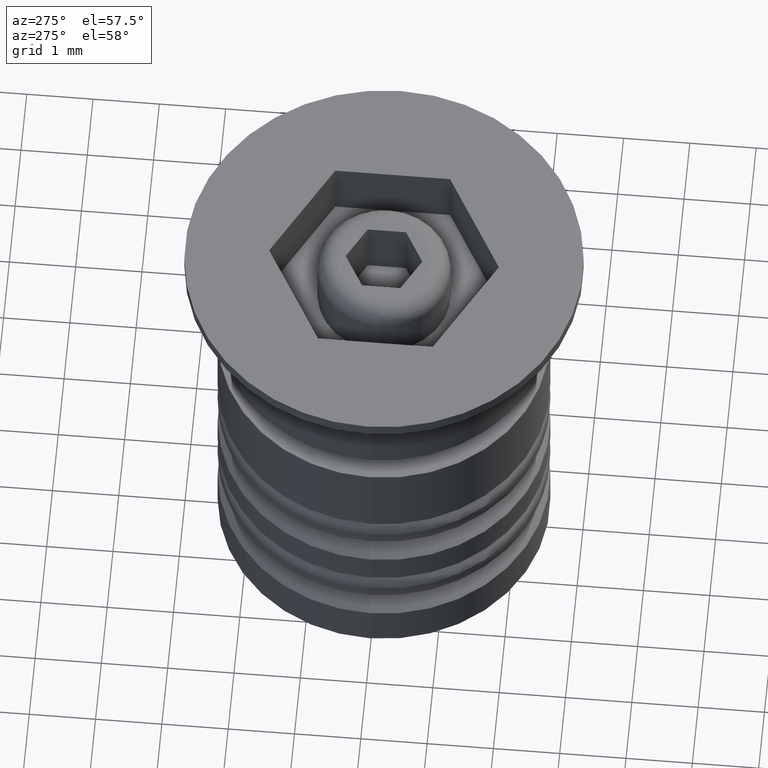
[diagram: clean part render]
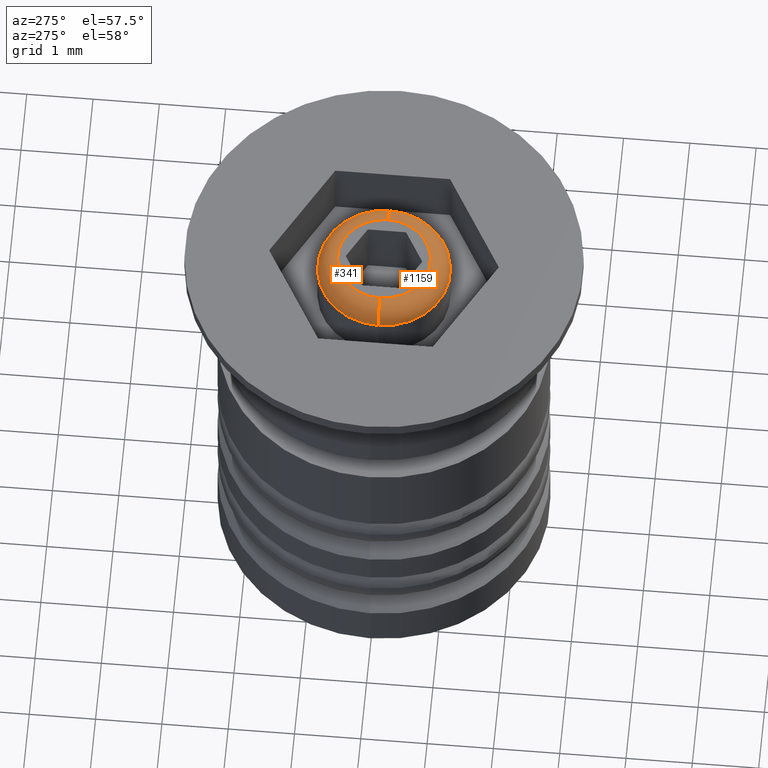
[diagram: same view with one multi-face feature highlighted, each face labeled with its STEP entity id]
A machine part, auxiliary view. The highlighted faces form ONE feature: a constant-radius fillet chain: 2 tangent blend faces with common blend radius 0.3 mm. The faces share edges in the B-rep.
Their STEP definitions:
[1] entity #341 (Torus):
#81 = CARTESIAN_POINT ( 'NONE',  ( -1.000000000000000666, 0.000000000000000000, -0.3000000000000003775 ) ) ;
#125 = EDGE_LOOP ( 'NONE', ( #1100, #1586, #299, #1050 ) ) ;
#171 = AXIS2_PLACEMENT_3D ( 'NONE', #743, #1140, #1020 ) ;
#220 = VERTEX_POINT ( 'NONE', #646 ) ;
#230 = EDGE_CURVE ( 'NONE', #1154, #220, #1243, .T. ) ;
#299 = ORIENTED_EDGE ( 'NONE', *, *, #230, .F. ) ;
#341 = ADVANCED_FACE ( 'NONE', ( #1517 ), #689, .T. ) ;
#406 = DIRECTION ( 'NONE',  ( -1.000000000000000000, 1.224646799147353207E-16, 0.000000000000000000 ) ) ;
#421 = AXIS2_PLACEMENT_3D ( 'NONE', #1198, #1485, #514 ) ;
#446 = CARTESIAN_POINT ( 'NONE',  ( 0.7000000000000007327, 0.000000000000000000, 0.000000000000000000 ) ) ;
#500 = DIRECTION ( 'NONE',  ( 0.000000000000000000, 0.000000000000000000, -1.000000000000000000 ) ) ;
#514 = DIRECTION ( 'NONE',  ( 1.000000000000000000, 0.000000000000000000, 0.000000000000000000 ) ) ;
#532 = AXIS2_PLACEMENT_3D ( 'NONE', #963, #1558, #1258 ) ;
#563 = EDGE_CURVE ( 'NONE', #878, #1141, #986, .T. ) ;
#646 = CARTESIAN_POINT ( 'NONE',  ( -0.7000000000000007327, 1.040949779275251126E-16, 0.000000000000000000 ) ) ;
#689 = TOROIDAL_SURFACE ( 'NONE', #532, 0.7000000000000007327, 0.2999999999999999889 ) ;
#743 = CARTESIAN_POINT ( 'NONE',  ( 0.7000000000000007327, 0.000000000000000000, -0.2999999999999999334 ) ) ;
#797 = DIRECTION ( 'NONE',  ( 1.000000000000000000, 0.000000000000000000, 0.000000000000000000 ) ) ;
#802 = AXIS2_PLACEMENT_3D ( 'NONE', #1553, #1126, #406 ) ;
#878 = VERTEX_POINT ( 'NONE', #81 ) ;
#963 = CARTESIAN_POINT ( 'NONE',  ( 0.000000000000000000, 0.000000000000000000, -0.2999999999999999334 ) ) ;
#986 = CIRCLE ( 'NONE', #1629, 1.000000000000000666 ) ;
#1020 = DIRECTION ( 'NONE',  ( 0.000000000000000000, 0.000000000000000000, -1.000000000000000000 ) ) ;
#1039 = CARTESIAN_POINT ( 'NONE',  ( 1.000000000000000666, 1.224646799147353947E-16, -0.3000000000000003775 ) ) ;
#1050 = ORIENTED_EDGE ( 'NONE', *, *, #1506, .F. ) ;
#1100 = ORIENTED_EDGE ( 'NONE', *, *, #563, .F. ) ;
#1126 = DIRECTION ( 'NONE',  ( 1.224646799147353207E-16, 1.000000000000000000, 0.000000000000000000 ) ) ;
#1140 = DIRECTION ( 'NONE',  ( 0.000000000000000000, -1.000000000000000000, 0.000000000000000000 ) ) ;
#1141 = VERTEX_POINT ( 'NONE', #1039 ) ;
#1142 = CIRCLE ( 'NONE', #171, 0.2999999999999999334 ) ;
#1154 = VERTEX_POINT ( 'NONE', #446 ) ;
#1198 = CARTESIAN_POINT ( 'NONE',  ( 0.000000000000000000, 0.000000000000000000, 0.000000000000000000 ) ) ;
#1243 = CIRCLE ( 'NONE', #421, 0.7000000000000007327 ) ;
#1248 = EDGE_CURVE ( 'NONE', #878, #220, #1572, .T. ) ;
#1258 = DIRECTION ( 'NONE',  ( 1.000000000000000000, 0.000000000000000000, 0.000000000000000000 ) ) ;
#1485 = DIRECTION ( 'NONE',  ( -0.000000000000000000, -0.000000000000000000, 1.000000000000000000 ) ) ;
#1506 = EDGE_CURVE ( 'NONE', #1141, #1154, #1142, .T. ) ;
#1517 = FACE_OUTER_BOUND ( 'NONE', #125, .T. ) ;
#1553 = CARTESIAN_POINT ( 'NONE',  ( -0.7000000000000007327, 8.572527594031481818E-17, -0.2999999999999999334 ) ) ;
#1558 = DIRECTION ( 'NONE',  ( -0.000000000000000000, -0.000000000000000000, 1.000000000000000000 ) ) ;
#1572 = CIRCLE ( 'NONE', #802, 0.2999999999999999334 ) ;
#1586 = ORIENTED_EDGE ( 'NONE', *, *, #1248, .T. ) ;
#1627 = CARTESIAN_POINT ( 'NONE',  ( 0.000000000000000000, 0.000000000000000000, -0.3000000000000003775 ) ) ;
#1629 = AXIS2_PLACEMENT_3D ( 'NONE', #1627, #500, #797 ) ;
[2] entity #1159 (Torus):
#81 = CARTESIAN_POINT ( 'NONE',  ( -1.000000000000000666, 0.000000000000000000, -0.3000000000000003775 ) ) ;
#161 = CIRCLE ( 'NONE', #694, 1.000000000000000666 ) ;
#171 = AXIS2_PLACEMENT_3D ( 'NONE', #743, #1140, #1020 ) ;
#203 = CARTESIAN_POINT ( 'NONE',  ( 0.000000000000000000, 0.000000000000000000, -0.3000000000000003775 ) ) ;
#220 = VERTEX_POINT ( 'NONE', #646 ) ;
#311 = DIRECTION ( 'NONE',  ( 0.000000000000000000, 0.000000000000000000, -1.000000000000000000 ) ) ;
#378 = DIRECTION ( 'NONE',  ( -0.000000000000000000, -0.000000000000000000, 1.000000000000000000 ) ) ;
#406 = DIRECTION ( 'NONE',  ( -1.000000000000000000, 1.224646799147353207E-16, 0.000000000000000000 ) ) ;
#446 = CARTESIAN_POINT ( 'NONE',  ( 0.7000000000000007327, 0.000000000000000000, 0.000000000000000000 ) ) ;
#473 = DIRECTION ( 'NONE',  ( 1.000000000000000000, 0.000000000000000000, 0.000000000000000000 ) ) ;
#483 = DIRECTION ( 'NONE',  ( 1.000000000000000000, 0.000000000000000000, 0.000000000000000000 ) ) ;
#646 = CARTESIAN_POINT ( 'NONE',  ( -0.7000000000000007327, 1.040949779275251126E-16, 0.000000000000000000 ) ) ;
#694 = AXIS2_PLACEMENT_3D ( 'NONE', #203, #311, #473 ) ;
#738 = CARTESIAN_POINT ( 'NONE',  ( 0.000000000000000000, 0.000000000000000000, -0.2999999999999999334 ) ) ;
#743 = CARTESIAN_POINT ( 'NONE',  ( 0.7000000000000007327, 0.000000000000000000, -0.2999999999999999334 ) ) ;
#780 = AXIS2_PLACEMENT_3D ( 'NONE', #738, #1153, #483 ) ;
#802 = AXIS2_PLACEMENT_3D ( 'NONE', #1553, #1126, #406 ) ;
#829 = EDGE_CURVE ( 'NONE', #220, #1154, #1455, .T. ) ;
#878 = VERTEX_POINT ( 'NONE', #81 ) ;
#902 = FACE_OUTER_BOUND ( 'NONE', #1297, .T. ) ;
#942 = DIRECTION ( 'NONE',  ( 1.000000000000000000, 0.000000000000000000, 0.000000000000000000 ) ) ;
#1020 = DIRECTION ( 'NONE',  ( 0.000000000000000000, 0.000000000000000000, -1.000000000000000000 ) ) ;
#1039 = CARTESIAN_POINT ( 'NONE',  ( 1.000000000000000666, 1.224646799147353947E-16, -0.3000000000000003775 ) ) ;
#1080 = EDGE_CURVE ( 'NONE', #1141, #878, #161, .T. ) ;
#1126 = DIRECTION ( 'NONE',  ( 1.224646799147353207E-16, 1.000000000000000000, 0.000000000000000000 ) ) ;
#1140 = DIRECTION ( 'NONE',  ( 0.000000000000000000, -1.000000000000000000, 0.000000000000000000 ) ) ;
#1141 = VERTEX_POINT ( 'NONE', #1039 ) ;
#1142 = CIRCLE ( 'NONE', #171, 0.2999999999999999334 ) ;
#1153 = DIRECTION ( 'NONE',  ( -0.000000000000000000, -0.000000000000000000, 1.000000000000000000 ) ) ;
#1154 = VERTEX_POINT ( 'NONE', #446 ) ;
#1159 = ADVANCED_FACE ( 'NONE', ( #902 ), #1340, .T. ) ;
#1248 = EDGE_CURVE ( 'NONE', #878, #220, #1572, .T. ) ;
#1261 = ORIENTED_EDGE ( 'NONE', *, *, #829, .F. ) ;
#1297 = EDGE_LOOP ( 'NONE', ( #1460, #1529, #1341, #1261 ) ) ;
#1340 = TOROIDAL_SURFACE ( 'NONE', #780, 0.7000000000000007327, 0.2999999999999999889 ) ;
#1341 = ORIENTED_EDGE ( 'NONE', *, *, #1506, .T. ) ;
#1455 = CIRCLE ( 'NONE', #1544, 0.7000000000000007327 ) ;
#1460 = ORIENTED_EDGE ( 'NONE', *, *, #1248, .F. ) ;
#1506 = EDGE_CURVE ( 'NONE', #1141, #1154, #1142, .T. ) ;
#1511 = CARTESIAN_POINT ( 'NONE',  ( 0.000000000000000000, 0.000000000000000000, 0.000000000000000000 ) ) ;
#1529 = ORIENTED_EDGE ( 'NONE', *, *, #1080, .F. ) ;
#1544 = AXIS2_PLACEMENT_3D ( 'NONE', #1511, #378, #942 ) ;
#1553 = CARTESIAN_POINT ( 'NONE',  ( -0.7000000000000007327, 8.572527594031481818E-17, -0.2999999999999999334 ) ) ;
#1572 = CIRCLE ( 'NONE', #802, 0.2999999999999999334 ) ;